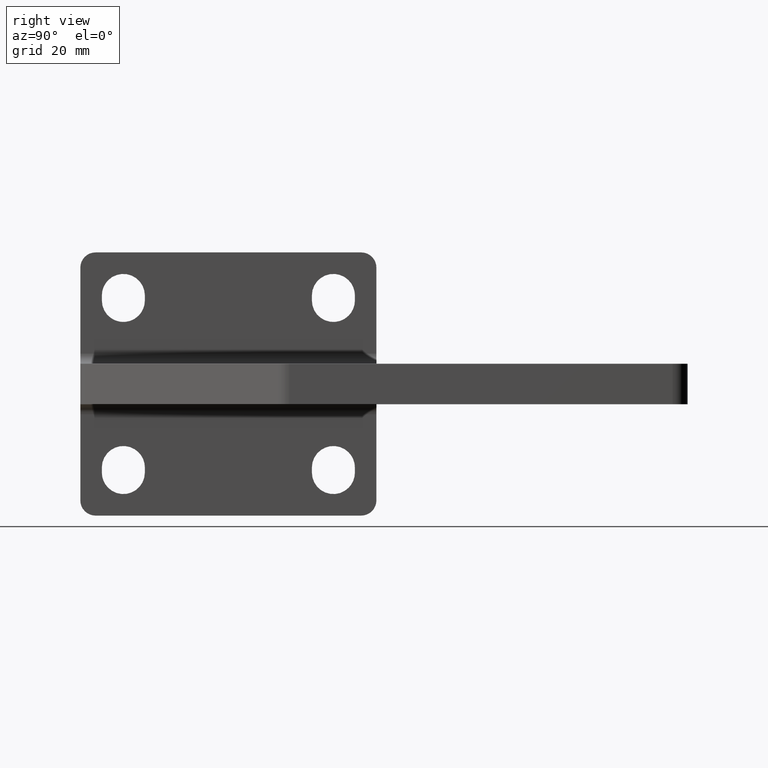
[diagram: clean part render]
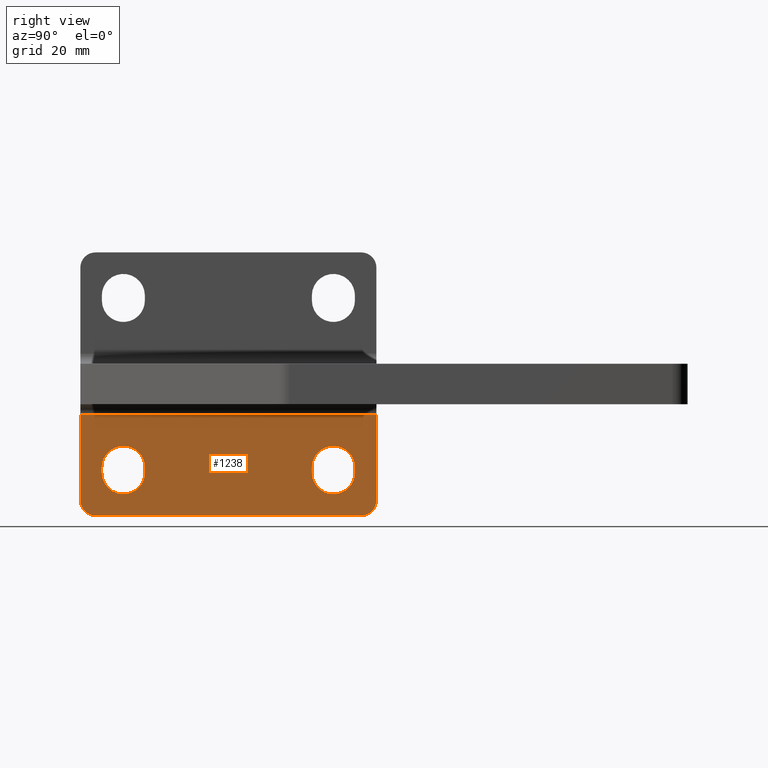
[diagram: same view with one face highlighted and labeled with its STEP entity id]
A machine part, right view. The second image highlights one B-rep face of the part: STEP entity #1238.
In plain terms, the highlighted face is a freeform B-spline surface patch.
Its self-contained STEP definition (entity closure, byte-faithful):
#448=CARTESIAN_POINT('',(-48.502768757920627,52.816608483248658,-25.121320343559638));
#449=VERTEX_POINT('',#448);
#458=CARTESIAN_POINT('',(-48.502768757920627,50.695288139689019,-25.999999999999996));
#459=VERTEX_POINT('',#458);
#460=CARTESIAN_POINT('',(-48.502768757920627,50.695288139689019,-22.999999999999993));
#461=DIRECTION('',(1.000000000000000,3.731165E-018,-3.731165E-018));
#462=DIRECTION('',(-5.276664E-018,0.707106781186546,-0.707106781186549));
#463=AXIS2_PLACEMENT_3D('',#460,#461,#462);
#464=CIRCLE('',#463,3.000000000000000);
#465=EDGE_CURVE('',#459,#449,#464,.T.);
#511=CARTESIAN_POINT('',(-48.502768757920620,-3.926032203870626,-25.121320343559638));
#512=VERTEX_POINT('',#511);
#521=CARTESIAN_POINT('',(-48.502768757920620,-4.804711860310986,-22.999999999999993));
#522=VERTEX_POINT('',#521);
#523=CARTESIAN_POINT('',(-48.502768757920627,-1.804711860310986,-22.999999999999993));
#524=DIRECTION('',(1.000000000000000,-8.608169E-017,-8.608169E-017));
#525=DIRECTION('',(-1.217379E-016,-0.707106781186546,-0.707106781186549));
#526=AXIS2_PLACEMENT_3D('',#523,#524,#525);
#527=CIRCLE('',#526,3.000000000000000);
#528=EDGE_CURVE('',#522,#512,#527,.T.);
#576=CARTESIAN_POINT('',(-48.502768757920627,48.200491959731856,-20.505203820042826));
#577=VERTEX_POINT('',#576);
#593=CARTESIAN_POINT('',(-48.502768757920627,40.945288139689026,-17.500000000000000));
#594=VERTEX_POINT('',#593);
#601=CARTESIAN_POINT('',(-48.502768757920627,45.195288139689026,-17.500000000000000));
#602=DIRECTION('',(-1.000000000000000,-3.731165E-018,3.731165E-018));
#603=DIRECTION('',(-5.276664E-018,0.707106781186548,-0.707106781186548));
#604=AXIS2_PLACEMENT_3D('',#601,#602,#603);
#605=CIRCLE('',#604,4.250000000000001);
#606=EDGE_CURVE('',#577,#594,#605,.T.);
#639=CARTESIAN_POINT('',(-48.502768757920620,6.700491959731842,-13.494796179957163));
#640=VERTEX_POINT('',#639);
#656=CARTESIAN_POINT('',(-48.502768757920627,7.945288139689014,-16.499999999999993));
#657=VERTEX_POINT('',#656);
#664=CARTESIAN_POINT('',(-48.502768757920620,3.695288139689015,-16.499999999999993));
#665=DIRECTION('',(-1.0,-3.731165E-018,3.731165E-018));
#666=DIRECTION('',(5.276664E-018,-0.707106781186548,0.707106781186547));
#667=AXIS2_PLACEMENT_3D('',#664,#665,#666);
#668=CIRCLE('',#667,4.250000000000001);
#669=EDGE_CURVE('',#640,#657,#668,.T.);
#702=CARTESIAN_POINT('',(-48.502768757920620,0.690084319646187,-20.505203820042826));
#703=VERTEX_POINT('',#702);
#719=CARTESIAN_POINT('',(-48.502768757920627,-0.554711860310986,-17.500000000000000));
#720=VERTEX_POINT('',#719);
#727=CARTESIAN_POINT('',(-48.502768757920620,3.695288139689015,-17.500000000000000));
#728=DIRECTION('',(-1.0,-3.731165E-018,3.731165E-018));
#729=DIRECTION('',(-5.276664E-018,0.707106781186548,-0.707106781186547));
#730=AXIS2_PLACEMENT_3D('',#727,#728,#729);
#731=CIRCLE('',#730,4.250000000000001);
#732=EDGE_CURVE('',#703,#720,#731,.T.);
#765=CARTESIAN_POINT('',(-48.502768757920620,48.200491959731849,-13.494796179957161));
#766=VERTEX_POINT('',#765);
#782=CARTESIAN_POINT('',(-48.502768757920634,49.445288139689019,-16.499999999999993));
#783=VERTEX_POINT('',#782);
#790=CARTESIAN_POINT('',(-48.502768757920627,45.195288139689026,-16.499999999999993));
#791=DIRECTION('',(-1.0,-3.731165E-018,3.731165E-018));
#792=DIRECTION('',(5.276664E-018,-0.707106781186547,0.707106781186548));
#793=AXIS2_PLACEMENT_3D('',#790,#791,#792);
#794=CIRCLE('',#793,4.250000000000001);
#795=EDGE_CURVE('',#766,#783,#794,.T.);
#814=CARTESIAN_POINT('',(-48.502768757920627,40.945288139689026,-16.499999999999993));
#815=VERTEX_POINT('',#814);
#822=CARTESIAN_POINT('',(-48.502768757920627,40.945288139689026,-16.499999999999993));
#823=DIRECTION('',(0.0,0.0,-1.0));
#824=VECTOR('',#823,1.000000000000007);
#825=LINE('',#822,#824);
#826=EDGE_CURVE('',#815,#594,#825,.T.);
#858=CARTESIAN_POINT('',(-48.502768757920627,45.195288139689026,-16.499999999999993));
#859=DIRECTION('',(-1.0,-3.731165E-018,3.731165E-018));
#860=DIRECTION('',(5.276664E-018,-0.707106781186547,0.707106781186548));
#861=AXIS2_PLACEMENT_3D('',#858,#859,#860);
#862=CIRCLE('',#861,4.250000000000001);
#863=EDGE_CURVE('',#815,#766,#862,.T.);
#883=CARTESIAN_POINT('',(-48.502768757920627,7.945288139689014,-17.500000000000000));
#884=VERTEX_POINT('',#883);
#891=CARTESIAN_POINT('',(-48.502768757920627,7.945288139689014,-17.500000000000000));
#892=DIRECTION('',(0.0,0.0,1.0));
#893=VECTOR('',#892,1.000000000000007);
#894=LINE('',#891,#893);
#895=EDGE_CURVE('',#884,#657,#894,.T.);
#934=CARTESIAN_POINT('',(-48.502768757920620,3.695288139689015,-17.500000000000000));
#935=DIRECTION('',(-1.0,-3.731165E-018,3.731165E-018));
#936=DIRECTION('',(-5.276664E-018,0.707106781186548,-0.707106781186547));
#937=AXIS2_PLACEMENT_3D('',#934,#935,#936);
#938=CIRCLE('',#937,4.250000000000001);
#939=EDGE_CURVE('',#884,#703,#938,.T.);
#966=CARTESIAN_POINT('',(-48.502768757920627,-0.554711860310986,-16.499999999999993));
#967=VERTEX_POINT('',#966);
#974=CARTESIAN_POINT('',(-48.502768757920627,-0.554711860310986,-16.499999999999993));
#975=DIRECTION('',(0.0,0.0,-1.0));
#976=VECTOR('',#975,1.000000000000007);
#977=LINE('',#974,#976);
#978=EDGE_CURVE('',#967,#720,#977,.T.);
#1010=CARTESIAN_POINT('',(-48.502768757920620,3.695288139689015,-16.499999999999993));
#1011=DIRECTION('',(-1.0,-3.731165E-018,3.731165E-018));
#1012=DIRECTION('',(5.276664E-018,-0.707106781186548,0.707106781186547));
#1013=AXIS2_PLACEMENT_3D('',#1010,#1011,#1012);
#1014=CIRCLE('',#1013,4.250000000000001);
#1015=EDGE_CURVE('',#967,#640,#1014,.T.);
#1055=CARTESIAN_POINT('',(-48.502768757920634,49.445288139689019,-17.500000000000000));
#1056=VERTEX_POINT('',#1055);
#1057=CARTESIAN_POINT('',(-48.502768757920627,45.195288139689026,-17.500000000000000));
#1058=DIRECTION('',(-1.000000000000000,-3.731165E-018,3.731165E-018));
#1059=DIRECTION('',(-5.276664E-018,0.707106781186548,-0.707106781186548));
#1060=AXIS2_PLACEMENT_3D('',#1057,#1058,#1059);
#1061=CIRCLE('',#1060,4.250000000000001);
#1062=EDGE_CURVE('',#1056,#577,#1061,.T.);
#1095=CARTESIAN_POINT('',(-48.502768757920634,49.445288139689019,-17.500000000000000));
#1096=DIRECTION('',(0.0,0.0,1.0));
#1097=VECTOR('',#1096,1.000000000000007);
#1098=LINE('',#1095,#1097);
#1099=EDGE_CURVE('',#1056,#783,#1098,.T.);
#1140=CARTESIAN_POINT('',(-48.502768757920620,-1.804711860310986,-25.999999999999996));
#1141=VERTEX_POINT('',#1140);
#1148=CARTESIAN_POINT('',(-48.502768757920627,-1.804711860310986,-22.999999999999993));
#1149=DIRECTION('',(1.000000000000000,-8.608169E-017,-8.608169E-017));
#1150=DIRECTION('',(-1.217379E-016,-0.707106781186546,-0.707106781186549));
#1151=AXIS2_PLACEMENT_3D('',#1148,#1149,#1150);
#1152=CIRCLE('',#1151,3.000000000000000);
#1153=EDGE_CURVE('',#512,#1141,#1152,.T.);
#1171=CARTESIAN_POINT('',(-48.502768757920627,50.695288139689019,-25.999999999999996));
#1172=DIRECTION('',(0.0,-1.0,0.0));
#1173=VECTOR('',#1172,52.500000000000007);
#1174=LINE('',#1171,#1173);
#1175=EDGE_CURVE('',#459,#1141,#1174,.T.);
#1180=CARTESIAN_POINT('',(-48.502768757920634,53.695288139689019,-26.0));
#1181=CARTESIAN_POINT('',(-48.502768757920627,53.695288139689019,-5.999999999999993));
#1182=CARTESIAN_POINT('',(-48.502768757920627,-4.804711860310988,-26.0));
#1183=CARTESIAN_POINT('',(-48.502768757920620,-4.804711860310988,-5.999999999999993));
#1184=B_SPLINE_SURFACE_WITH_KNOTS('',1,1,((#1180,#1182),(#1181,#1183)),.UNSPECIFIED.,.F.,.F.,.U.,(2,2),(2,2),(0.0,20.000000000000007),(0.0,58.500000000000007),.UNSPECIFIED.);
#1185=ORIENTED_EDGE('',*,*,#528,.T.);
#1186=ORIENTED_EDGE('',*,*,#1153,.T.);
#1187=ORIENTED_EDGE('',*,*,#1175,.F.);
#1188=ORIENTED_EDGE('',*,*,#465,.T.);
#1189=CARTESIAN_POINT('',(-48.502768757920627,53.695288139689019,-22.999999999999993));
#1190=VERTEX_POINT('',#1189);
#1191=CARTESIAN_POINT('',(-48.502768757920627,50.695288139689019,-22.999999999999993));
#1192=DIRECTION('',(1.000000000000000,3.731165E-018,-3.731165E-018));
#1193=DIRECTION('',(-5.276664E-018,0.707106781186546,-0.707106781186549));
#1194=AXIS2_PLACEMENT_3D('',#1191,#1192,#1193);
#1195=CIRCLE('',#1194,3.000000000000000);
#1196=EDGE_CURVE('',#449,#1190,#1195,.T.);
#1197=ORIENTED_EDGE('',*,*,#1196,.T.);
#1198=CARTESIAN_POINT('',(-48.502768757920627,53.695288139689019,-5.999999999999995));
#1199=VERTEX_POINT('',#1198);
#1200=CARTESIAN_POINT('',(-48.502768757920627,53.695288139689019,-5.999999999999995));
#1201=DIRECTION('',(0.0,0.0,-1.0));
#1202=VECTOR('',#1201,17.0);
#1203=LINE('',#1200,#1202);
#1204=EDGE_CURVE('',#1199,#1190,#1203,.T.);
#1205=ORIENTED_EDGE('',*,*,#1204,.F.);
#1206=CARTESIAN_POINT('',(-48.502768757920620,-4.804711860310986,-5.999999999999995));
#1207=VERTEX_POINT('',#1206);
#1208=CARTESIAN_POINT('',(-48.502768757920620,-4.804711860310986,-5.999999999999995));
#1209=DIRECTION('',(0.0,1.0,0.0));
#1210=VECTOR('',#1209,58.500000000000007);
#1211=LINE('',#1208,#1210);
#1212=EDGE_CURVE('',#1207,#1199,#1211,.T.);
#1213=ORIENTED_EDGE('',*,*,#1212,.F.);
#1214=CARTESIAN_POINT('',(-48.502768757920620,-4.804711860310986,-22.999999999999993));
#1215=DIRECTION('',(0.0,0.0,1.0));
#1216=VECTOR('',#1215,17.0);
#1217=LINE('',#1214,#1216);
#1218=EDGE_CURVE('',#522,#1207,#1217,.T.);
#1219=ORIENTED_EDGE('',*,*,#1218,.F.);
#1220=EDGE_LOOP('',(#1185,#1186,#1187,#1188,#1197,#1205,#1213,#1219));
#1221=FACE_OUTER_BOUND('',#1220,.T.);
#1222=ORIENTED_EDGE('',*,*,#978,.F.);
#1223=ORIENTED_EDGE('',*,*,#1015,.T.);
#1224=ORIENTED_EDGE('',*,*,#669,.T.);
#1225=ORIENTED_EDGE('',*,*,#895,.F.);
#1226=ORIENTED_EDGE('',*,*,#939,.T.);
#1227=ORIENTED_EDGE('',*,*,#732,.T.);
#1228=EDGE_LOOP('',(#1222,#1223,#1224,#1225,#1226,#1227));
#1229=FACE_BOUND('',#1228,.T.);
#1230=ORIENTED_EDGE('',*,*,#826,.F.);
#1231=ORIENTED_EDGE('',*,*,#863,.T.);
#1232=ORIENTED_EDGE('',*,*,#795,.T.);
#1233=ORIENTED_EDGE('',*,*,#1099,.F.);
#1234=ORIENTED_EDGE('',*,*,#1062,.T.);
#1235=ORIENTED_EDGE('',*,*,#606,.T.);
#1236=EDGE_LOOP('',(#1230,#1231,#1232,#1233,#1234,#1235));
#1237=FACE_BOUND('',#1236,.T.);
#1238=ADVANCED_FACE('',(#1221,#1229,#1237),#1184,.T.);